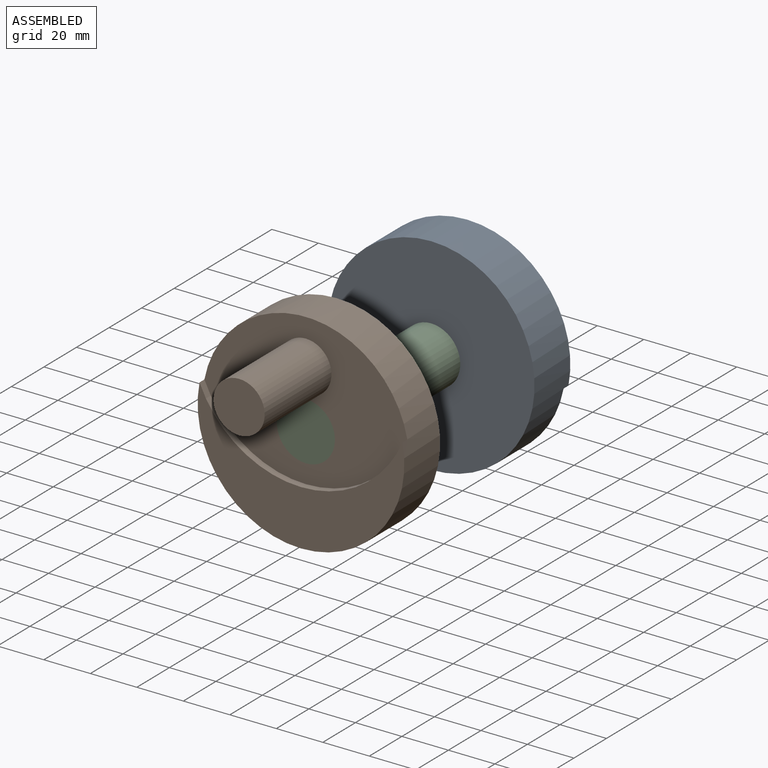
[diagram: assembled view]
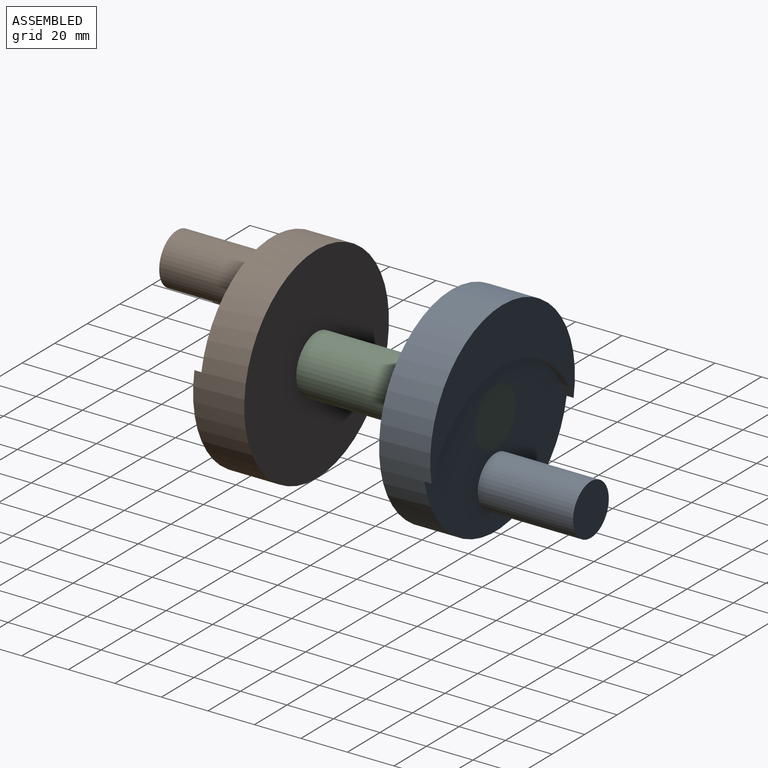
[diagram: assembled view, second angle]
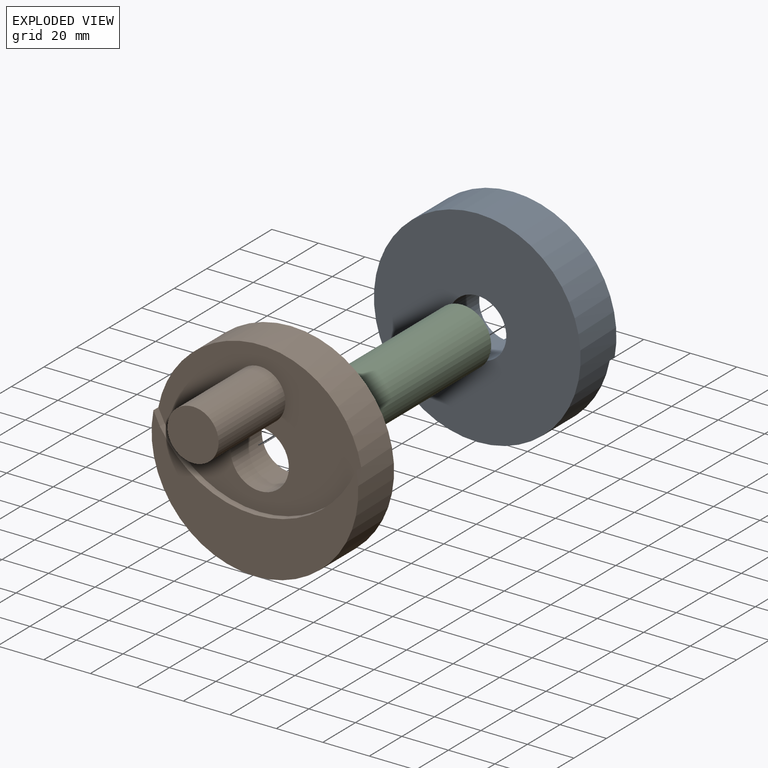
[diagram: exploded view]
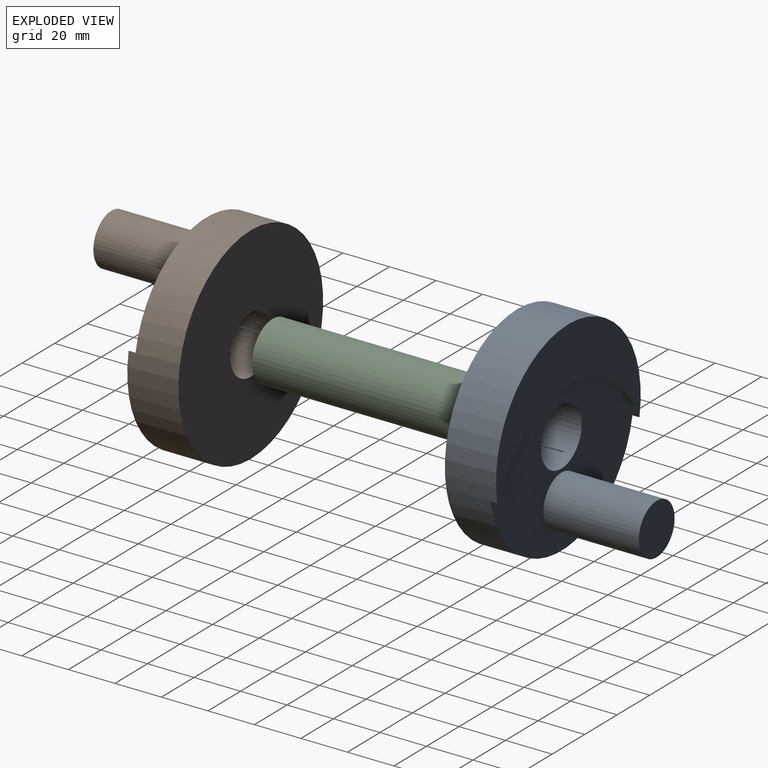
[diagram: exploded view, second angle]
ASSEMBLY  parts=3 mates=2
PART A: 8 faces, bbox 88.9x60x88.9 mm
  f0: cylinder r=44.45mm len=88.9mm, axis (0,-1,0), area 5776.3mm2, adj f1,f2,f3,f4
  f1: plane 88.9x88.9mm, normal (0,1,0), area 5716.3mm2, adj f0,f7
  f2: plane 88.9x52.88mm, normal (0,-1,0), area 2017.7mm2, adj f0,f3
  f3: cylinder r=47.32mm len=87.29mm, axis (0,-1,0), area 333.3mm2, adj f0,f2,f4
  f4: plane 87.29x65.05mm, normal (0,-1,0), area 3318.5mm2, adj f0,f3,f6,f7
  f5: plane 22x22mm, normal (0,-1,0), area 380.1mm2, adj f6
  f6: cylinder r=11mm len=41mm, axis (0,1,0), area 2833.7mm2, adj f4,f5
  f7: cylinder r=12.5mm len=25mm, axis (0,-1,0), area 1492.3mm2, adj f1,f4
PART B: same geometry as A
PART C: 3 faces, bbox 25x96x25 mm
  f0: cylinder r=12.5mm len=96mm, axis (0,1,0), area 7539.8mm2, adj f1,f2
  f1: plane 25x25mm, normal (0,-1,0), area 490.9mm2, adj f0
  f2: plane 25x25mm, normal (0,1,0), area 490.9mm2, adj f0
PLACE A rot(axis=(-1,0,0),180deg) t=(25.03,44.23,-3.79)mm fixed
PLACE B t=(25.03,-57.77,-3.79)mm
PLACE C t=(25.03,41.23,-3.79)mm
MATE fastened B.f7 <-> C.f0  axis (0,-1,0) through (25.03,-54.77,-3.79)mm
MATE revolute A.f7 <-> C.f0  axis (0,1,0) through (25.03,41.23,-3.79)mm
